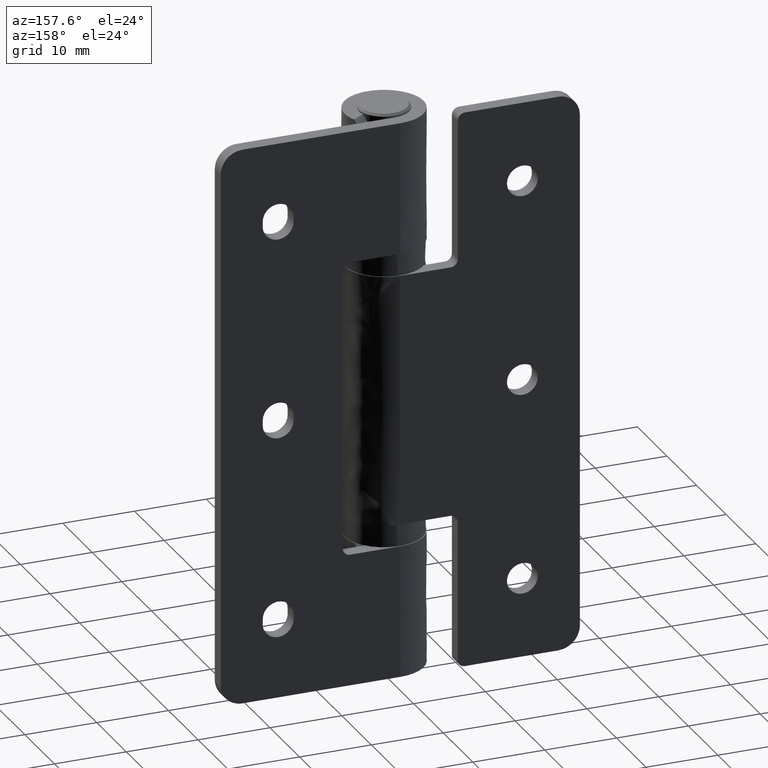
[diagram: clean part render]
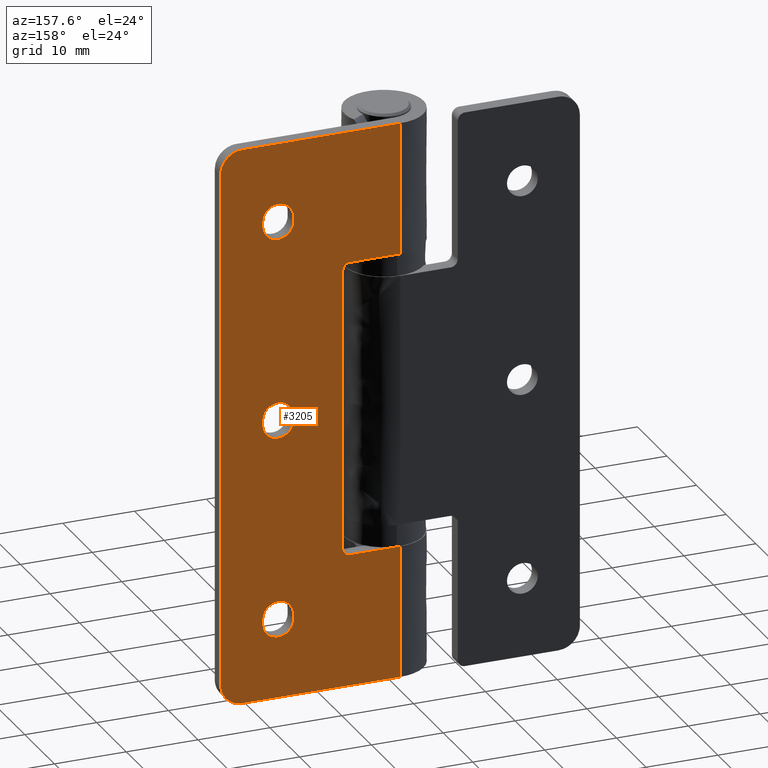
[diagram: same view with one face highlighted and labeled with its STEP entity id]
A machine part, auxiliary view. The second image highlights one B-rep face of the part: STEP entity #3205.
In plain terms, the highlighted face is a freeform B-spline surface patch.
Its self-contained STEP definition (entity closure, byte-faithful):
#2900=CARTESIAN_POINT('',(-1.248749951545153,5.500000000000229,-3.896099848820864));
#2901=CARTESIAN_POINT('',(-1.248749951545153,5.500000000000229,81.896101940943907));
#2902=CARTESIAN_POINT('',(26.248750622097401,5.500000000000229,-3.896099848820863));
#2903=CARTESIAN_POINT('',(26.248750622097401,5.500000000000229,81.896101940943893));
#2904=B_SPLINE_SURFACE_WITH_KNOTS('',1,1,((#2900,#2902),(#2901,#2903)),.UNSPECIFIED.,.F.,.F.,.U.,(2,2),(2,2),(0.0,85.792201789764775),(0.0,27.497500573642562),.UNSPECIFIED.);
#2905=CARTESIAN_POINT('',(25.0,5.500000000000229,75.0));
#2906=VERTEX_POINT('',#2905);
#2907=CARTESIAN_POINT('',(25.0,5.500000000000229,3.0));
#2908=VERTEX_POINT('',#2907);
#2909=CARTESIAN_POINT('',(25.0,5.500000000000229,75.0));
#2910=CARTESIAN_POINT('',(25.0,5.500000000000229,3.0));
#2911=QUASI_UNIFORM_CURVE('',1,(#2909,#2910),.UNSPECIFIED.,.F.,.U.);
#2912=EDGE_CURVE('',#2906,#2908,#2911,.T.);
#2913=ORIENTED_EDGE('',*,*,#2912,.T.);
#2914=CARTESIAN_POINT('',(22.0,5.500000000000229,0.0));
#2915=VERTEX_POINT('',#2914);
#2916=CARTESIAN_POINT('',(25.0,5.500000000000229,3.0));
#2917=CARTESIAN_POINT('',(25.0,5.500000000000229,0.0));
#2918=CARTESIAN_POINT('',(22.0,5.500000000000229,0.0));
#2926=(BOUNDED_CURVE()B_SPLINE_CURVE(2,(#2916,#2917,#2918),.UNSPECIFIED.,.F.,.U.)CURVE()GEOMETRIC_REPRESENTATION_ITEM()QUASI_UNIFORM_CURVE()RATIONAL_B_SPLINE_CURVE((1.0,0.707106781186548,1.0))REPRESENTATION_ITEM(''));
#2927=EDGE_CURVE('',#2908,#2915,#2926,.T.);
#2928=ORIENTED_EDGE('',*,*,#2927,.T.);
#2929=CARTESIAN_POINT('',(-1.010300E-015,5.500000000000000,0.0));
#2930=VERTEX_POINT('',#2929);
#2931=CARTESIAN_POINT('',(-1.010300E-015,5.500000000000000,0.0));
#2932=CARTESIAN_POINT('',(22.0,5.500000000000229,0.0));
#2933=QUASI_UNIFORM_CURVE('',1,(#2931,#2932),.UNSPECIFIED.,.F.,.U.);
#2934=EDGE_CURVE('',#2930,#2915,#2933,.T.);
#2935=ORIENTED_EDGE('',*,*,#2934,.F.);
#2936=CARTESIAN_POINT('',(-1.010298E-015,5.500000000000229,18.399999999999999));
#2937=VERTEX_POINT('',#2936);
#2938=CARTESIAN_POINT('',(-1.010298E-015,5.500000000000229,18.399999999999999));
#2939=CARTESIAN_POINT('',(-1.010300E-015,5.500000000000000,0.0));
#2940=QUASI_UNIFORM_CURVE('',1,(#2938,#2939),.UNSPECIFIED.,.F.,.U.);
#2941=EDGE_CURVE('',#2937,#2930,#2940,.T.);
#2942=ORIENTED_EDGE('',*,*,#2941,.F.);
#2943=CARTESIAN_POINT('',(7.0,5.500000000000229,18.399999999999999));
#2944=VERTEX_POINT('',#2943);
#2945=CARTESIAN_POINT('',(7.0,5.500000000000229,18.399999999999999));
#2946=CARTESIAN_POINT('',(-1.010298E-015,5.500000000000229,18.399999999999999));
#2947=QUASI_UNIFORM_CURVE('',1,(#2945,#2946),.UNSPECIFIED.,.F.,.U.);
#2948=EDGE_CURVE('',#2944,#2937,#2947,.T.);
#2949=ORIENTED_EDGE('',*,*,#2948,.F.);
#2950=CARTESIAN_POINT('',(8.0,5.500000000000229,19.399999999999999));
#2951=VERTEX_POINT('',#2950);
#2952=CARTESIAN_POINT('',(7.0,5.500000000000229,18.399999999999999));
#2953=CARTESIAN_POINT('',(8.0,5.500000000000279,18.399999999999991));
#2954=CARTESIAN_POINT('',(8.0,5.500000000000280,19.399999999999999));
#2962=(BOUNDED_CURVE()B_SPLINE_CURVE(2,(#2952,#2953,#2954),.UNSPECIFIED.,.F.,.U.)CURVE()GEOMETRIC_REPRESENTATION_ITEM()QUASI_UNIFORM_CURVE()RATIONAL_B_SPLINE_CURVE((1.0,0.707106781186548,1.0))REPRESENTATION_ITEM(''));
#2963=EDGE_CURVE('',#2944,#2951,#2962,.T.);
#2964=ORIENTED_EDGE('',*,*,#2963,.T.);
#2965=CARTESIAN_POINT('',(8.0,5.500000000000229,58.600000000000001));
#2966=VERTEX_POINT('',#2965);
#2967=CARTESIAN_POINT('',(8.0,5.500000000000229,58.600000000000001));
#2968=CARTESIAN_POINT('',(8.0,5.500000000000229,19.399999999999999));
#2969=QUASI_UNIFORM_CURVE('',1,(#2967,#2968),.UNSPECIFIED.,.F.,.U.);
#2970=EDGE_CURVE('',#2966,#2951,#2969,.T.);
#2971=ORIENTED_EDGE('',*,*,#2970,.F.);
#2972=CARTESIAN_POINT('',(7.0,5.500000000000229,59.600000000000001));
#2973=VERTEX_POINT('',#2972);
#2974=CARTESIAN_POINT('',(8.0,5.500000000000280,58.600000000000001));
#2975=CARTESIAN_POINT('',(8.0,5.500000000000279,59.600000000000009));
#2976=CARTESIAN_POINT('',(7.0,5.500000000000280,59.600000000000001));
#2984=(BOUNDED_CURVE()B_SPLINE_CURVE(2,(#2974,#2975,#2976),.UNSPECIFIED.,.F.,.U.)CURVE()GEOMETRIC_REPRESENTATION_ITEM()QUASI_UNIFORM_CURVE()RATIONAL_B_SPLINE_CURVE((1.0,0.707106781186548,1.0))REPRESENTATION_ITEM(''));
#2985=EDGE_CURVE('',#2966,#2973,#2984,.T.);
#2986=ORIENTED_EDGE('',*,*,#2985,.T.);
#2987=CARTESIAN_POINT('',(-1.010298E-015,5.500000000000229,59.600000000000001));
#2988=VERTEX_POINT('',#2987);
#2989=CARTESIAN_POINT('',(-1.010298E-015,5.500000000000229,59.600000000000001));
#2990=CARTESIAN_POINT('',(7.0,5.500000000000229,59.600000000000001));
#2991=QUASI_UNIFORM_CURVE('',1,(#2989,#2990),.UNSPECIFIED.,.F.,.U.);
#2992=EDGE_CURVE('',#2988,#2973,#2991,.T.);
#2993=ORIENTED_EDGE('',*,*,#2992,.F.);
#2994=CARTESIAN_POINT('',(-1.010300E-015,5.500000000000000,78.0));
#2995=VERTEX_POINT('',#2994);
#2996=CARTESIAN_POINT('',(-1.010300E-015,5.500000000000000,78.0));
#2997=CARTESIAN_POINT('',(-1.010298E-015,5.500000000000229,59.600000000000001));
#2998=QUASI_UNIFORM_CURVE('',1,(#2996,#2997),.UNSPECIFIED.,.F.,.U.);
#2999=EDGE_CURVE('',#2995,#2988,#2998,.T.);
#3000=ORIENTED_EDGE('',*,*,#2999,.F.);
#3001=CARTESIAN_POINT('',(22.0,5.500000000000229,78.0));
#3002=VERTEX_POINT('',#3001);
#3003=CARTESIAN_POINT('',(-1.010300E-015,5.500000000000000,78.0));
#3004=CARTESIAN_POINT('',(22.0,5.500000000000229,78.0));
#3005=QUASI_UNIFORM_CURVE('',1,(#3003,#3004),.UNSPECIFIED.,.F.,.U.);
#3006=EDGE_CURVE('',#2995,#3002,#3005,.T.);
#3007=ORIENTED_EDGE('',*,*,#3006,.T.);
#3008=CARTESIAN_POINT('',(22.0,5.500000000000229,78.0));
#3009=CARTESIAN_POINT('',(25.0,5.500000000000229,78.0));
#3010=CARTESIAN_POINT('',(25.0,5.500000000000229,75.0));
#3018=(BOUNDED_CURVE()B_SPLINE_CURVE(2,(#3008,#3009,#3010),.UNSPECIFIED.,.F.,.U.)CURVE()GEOMETRIC_REPRESENTATION_ITEM()QUASI_UNIFORM_CURVE()RATIONAL_B_SPLINE_CURVE((1.0,0.707106781186548,1.0))REPRESENTATION_ITEM(''));
#3019=EDGE_CURVE('',#3002,#2906,#3018,.T.);
#3020=ORIENTED_EDGE('',*,*,#3019,.T.);
#3021=EDGE_LOOP('',(#2913,#2928,#2935,#2942,#2949,#2964,#2971,#2986,#2993,#3000,#3007,#3020));
#3022=FACE_OUTER_BOUND('',#3021,.T.);
#3023=CARTESIAN_POINT('',(14.850000000000000,5.500000000000229,10.649999999999800));
#3024=VERTEX_POINT('',#3023);
#3025=CARTESIAN_POINT('',(14.850000000000000,5.500000000000229,11.350000000000000));
#3026=VERTEX_POINT('',#3025);
#3027=CARTESIAN_POINT('',(14.850000000000000,5.500000000000229,10.649999999999800));
#3028=CARTESIAN_POINT('',(14.850000000000000,5.500000000000229,11.350000000000000));
#3029=QUASI_UNIFORM_CURVE('',1,(#3027,#3028),.UNSPECIFIED.,.F.,.U.);
#3030=EDGE_CURVE('',#3024,#3026,#3029,.T.);
#3031=ORIENTED_EDGE('',*,*,#3030,.F.);
#3032=CARTESIAN_POINT('',(19.149999999999999,5.500000000000280,10.650000000000000));
#3033=VERTEX_POINT('',#3032);
#3034=CARTESIAN_POINT('',(14.850000000000000,5.500000000000229,10.649999999999800));
#3035=CARTESIAN_POINT('',(14.849811707021050,5.500000000000227,10.403725028772850));
#3036=CARTESIAN_POINT('',(14.914191395577030,5.500000000000239,10.034483374774659));
#3037=CARTESIAN_POINT('',(15.127426038453359,5.500000000000229,9.569002962986486));
#3038=CARTESIAN_POINT('',(15.341156563849850,5.500000000000227,9.265541621716659));
#3039=CARTESIAN_POINT('',(15.665394703304310,5.500000000000243,8.941213677739263));
#3040=CARTESIAN_POINT('',(16.055959635265150,5.500000000000221,8.693858909093573));
#3041=CARTESIAN_POINT('',(16.492380524991781,5.500000000000205,8.549819884056827));
#3042=CARTESIAN_POINT('',(16.876171544557639,5.500000000000328,8.492877485248206));
#3043=CARTESIAN_POINT('',(17.264864919682509,5.500000000000126,8.502408755673741));
#3044=CARTESIAN_POINT('',(17.695983735860139,5.500000000000287,8.599204194603502));
#3045=CARTESIAN_POINT('',(18.098244087626831,5.500000000000220,8.783444747730886));
#3046=CARTESIAN_POINT('',(18.424760973636911,5.500000000000152,9.025631672239543));
#3047=CARTESIAN_POINT('',(18.704498307392551,5.500000000000238,9.319436798909896));
#3048=CARTESIAN_POINT('',(18.907163266828739,5.500000000000230,9.630956918420292));
#3049=CARTESIAN_POINT('',(19.096150334082179,5.500000000000243,10.087224028137991));
#3050=CARTESIAN_POINT('',(19.150144622762738,5.500000000000208,10.421321858406010));
#3051=CARTESIAN_POINT('',(19.149999999999999,5.500000000000280,10.650000000000000));
#3052=B_SPLINE_CURVE_WITH_KNOTS('',3,(#3034,#3035,#3036,#3037,#3038,#3039,#3040,#3041,#3042,#3043,#3044,#3045,#3046,#3047,#3048,#3049,#3050,#3051),.UNSPECIFIED.,.F.,.U.,(4,1,1,1,1,1,1,1,1,1,1,1,1,1,1,4),(0.000000324974197,0.738751803157196,1.108153372359948,1.530337068195387,1.846965516897091,2.480235004555820,2.902410099051510,3.219030310475953,3.641103087260100,4.063271374382831,4.538232794482427,4.960403285083242,5.277036423523961,5.751982979560173,6.068610273768472,6.754593701440429),.UNSPECIFIED.);
#3053=EDGE_CURVE('',#3024,#3033,#3052,.T.);
#3054=ORIENTED_EDGE('',*,*,#3053,.T.);
#3055=CARTESIAN_POINT('',(19.149999999999999,5.500000000000229,11.350000000000000));
#3056=VERTEX_POINT('',#3055);
#3057=CARTESIAN_POINT('',(19.149999999999999,5.500000000000229,11.350000000000000));
#3058=CARTESIAN_POINT('',(19.149999999999999,5.500000000000280,10.650000000000000));
#3059=QUASI_UNIFORM_CURVE('',1,(#3057,#3058),.UNSPECIFIED.,.F.,.U.);
#3060=EDGE_CURVE('',#3056,#3033,#3059,.T.);
#3061=ORIENTED_EDGE('',*,*,#3060,.F.);
#3062=CARTESIAN_POINT('',(19.149999999999999,5.500000000000229,11.350000000000000));
#3063=CARTESIAN_POINT('',(19.150086781213371,5.500000000000239,11.561074014981459));
#3064=CARTESIAN_POINT('',(19.095161282671459,5.500000000000222,11.930398548120291));
#3065=CARTESIAN_POINT('',(18.892939738782498,5.500000000000232,12.402099182797910));
#3066=CARTESIAN_POINT('',(18.618154833574032,5.500000000000204,12.792290155976630));
#3067=CARTESIAN_POINT('',(18.276735731963591,5.500000000000267,13.101753760939610));
#3068=CARTESIAN_POINT('',(17.907610598072910,5.500000000000196,13.310802921662919));
#3069=CARTESIAN_POINT('',(17.542258494041750,5.500000000000245,13.441521675783161));
#3070=CARTESIAN_POINT('',(17.159170669140440,5.500000000000284,13.508000717157350));
#3071=CARTESIAN_POINT('',(16.735133789296249,5.500000000000190,13.497592798431731));
#3072=CARTESIAN_POINT('',(16.338516502746021,5.500000000000217,13.408523263586259));
#3073=CARTESIAN_POINT('',(15.965288241637721,5.500000000000235,13.248540440679010));
#3074=CARTESIAN_POINT('',(15.583140091459409,5.500000000000234,12.993260520587540));
#3075=CARTESIAN_POINT('',(15.256954819838899,5.500000000000209,12.642125309761809));
#3076=CARTESIAN_POINT('',(15.013046424599640,5.500000000000277,12.211479710274130));
#3077=CARTESIAN_POINT('',(14.879439790905179,5.500000000000135,11.789718395508279));
#3078=CARTESIAN_POINT('',(14.849985900462190,5.500000000000378,11.490701948602890));
#3079=CARTESIAN_POINT('',(14.850000000000000,5.500000000000229,11.350000000000000));
#3080=B_SPLINE_CURVE_WITH_KNOTS('',3,(#3062,#3063,#3064,#3065,#3066,#3067,#3068,#3069,#3070,#3071,#3072,#3073,#3074,#3075,#3076,#3077,#3078,#3079),.UNSPECIFIED.,.F.,.U.,(4,1,1,1,1,1,1,1,1,1,1,1,1,1,1,4),(0.000000324979477,0.633211884215018,1.108153372364019,1.530337068198957,2.058057390868867,2.480235004558111,2.796865135107265,3.219030310477548,3.641103087261439,4.063271374383863,4.432684728722233,4.854862624357067,5.435354085936118,5.857524683232521,6.332475433552829,6.754593701440228),.UNSPECIFIED.);
#3081=EDGE_CURVE('',#3056,#3026,#3080,.T.);
#3082=ORIENTED_EDGE('',*,*,#3081,.T.);
#3083=EDGE_LOOP('',(#3031,#3054,#3061,#3082));
#3084=FACE_BOUND('',#3083,.T.);
#3085=CARTESIAN_POINT('',(19.149999999999999,5.500000000000229,39.350000000000001));
#3086=VERTEX_POINT('',#3085);
#3087=CARTESIAN_POINT('',(14.850000000000000,5.500000000000280,39.350000000000001));
#3088=VERTEX_POINT('',#3087);
#3089=CARTESIAN_POINT('',(19.149999999999999,5.500000000000229,39.350000000000001));
#3090=CARTESIAN_POINT('',(19.150029018592932,5.500000000000225,39.508299141621883));
#3091=CARTESIAN_POINT('',(19.114865935505090,5.500000000000232,39.824886486822074));
#3092=CARTESIAN_POINT('',(18.936517184122511,5.500000000000221,40.343718050441957));
#3093=CARTESIAN_POINT('',(18.593866652413048,5.500000000000267,40.843201039058350));
#3094=CARTESIAN_POINT('',(18.131224416831270,5.500000000000185,41.204177150304680));
#3095=CARTESIAN_POINT('',(17.711031922418670,5.500000000000269,41.390315682419292));
#3096=CARTESIAN_POINT('',(17.334657930443619,5.500000000000270,41.484594950727598));
#3097=CARTESIAN_POINT('',(16.946902415177352,5.500000000000117,41.513209223697210));
#3098=CARTESIAN_POINT('',(16.473281339330949,5.500000000000303,41.454836853981277));
#3099=CARTESIAN_POINT('',(16.024053892914690,5.500000000000206,41.287870446514312));
#3100=CARTESIAN_POINT('',(15.627261892767640,5.500000000000223,41.022685331709397));
#3101=CARTESIAN_POINT('',(15.339818750275811,5.500000000000274,40.735223528532352));
#3102=CARTESIAN_POINT('',(15.070058628453319,5.500000000000045,40.342175821300302));
#3103=CARTESIAN_POINT('',(14.890908268527919,5.500000000000670,39.877686324312222));
#3104=CARTESIAN_POINT('',(14.849988875540490,5.499999999999819,39.508289208706479));
#3105=CARTESIAN_POINT('',(14.850000000000000,5.500000000000280,39.350000000000001));
#3106=B_SPLINE_CURVE_WITH_KNOTS('',3,(#3089,#3090,#3091,#3092,#3093,#3094,#3095,#3096,#3097,#3098,#3099,#3100,#3101,#3102,#3103,#3104,#3105),.UNSPECIFIED.,.F.,.U.,(4,1,1,1,1,1,1,1,1,1,1,1,1,1,4),(0.000000324958116,0.474905243431270,0.949835305316644,1.635880206026481,2.269148133551552,2.691321007262653,3.007954784656129,3.430050758035192,3.852184052346533,4.432684728715720,4.854862624351824,5.277036423520570,5.646440968789280,6.279701977597624,6.754593701440331),.UNSPECIFIED.);
#3107=EDGE_CURVE('',#3086,#3088,#3106,.T.);
#3108=ORIENTED_EDGE('',*,*,#3107,.T.);
#3109=CARTESIAN_POINT('',(14.850000000000000,5.500000000000229,38.649999999999999));
#3110=VERTEX_POINT('',#3109);
#3111=CARTESIAN_POINT('',(14.850000000000000,5.500000000000280,39.350000000000001));
#3112=CARTESIAN_POINT('',(14.850000000000000,5.500000000000229,38.649999999999999));
#3113=QUASI_UNIFORM_CURVE('',1,(#3111,#3112),.UNSPECIFIED.,.F.,.U.);
#3114=EDGE_CURVE('',#3088,#3110,#3113,.T.);
#3115=ORIENTED_EDGE('',*,*,#3114,.T.);
#3116=CARTESIAN_POINT('',(19.149999999999999,5.500000000000229,38.649999999999999));
#3117=VERTEX_POINT('',#3116);
#3118=CARTESIAN_POINT('',(14.850000000000000,5.500000000000229,38.649999999999999));
#3119=CARTESIAN_POINT('',(14.849912819495501,5.500000000000227,38.438926062837389));
#3120=CARTESIAN_POINT('',(14.904839489730760,5.500000000000231,38.069602514359580));
#3121=CARTESIAN_POINT('',(15.107060427412600,5.500000000000228,37.597900433421692));
#3122=CARTESIAN_POINT('',(15.381844005073679,5.500000000000238,37.207709256720392));
#3123=CARTESIAN_POINT('',(15.723267164118070,5.500000000000207,36.898251670562303));
#3124=CARTESIAN_POINT('',(16.123142562114801,5.500000000000276,36.671760075643697));
#3125=CARTESIAN_POINT('',(16.492372476422752,5.500000000000211,36.549805720464128));
#3126=CARTESIAN_POINT('',(16.876171080631121,5.500000000000258,36.492877215162977));
#3127=CARTESIAN_POINT('',(17.264856597606940,5.500000000000232,36.502422332094000));
#3128=CARTESIAN_POINT('',(17.765022608527349,5.500000000000240,36.614609117488840));
#3129=CARTESIAN_POINT('',(18.223529681828509,5.500000000000225,36.852548266675853));
#3130=CARTESIAN_POINT('',(18.668897742889179,5.500000000000237,37.256142849225810));
#3131=CARTESIAN_POINT('',(18.931166850218911,5.500000000000219,37.659300111288488));
#3132=CARTESIAN_POINT('',(19.109333643810132,5.500000000000242,38.157549037881893));
#3133=CARTESIAN_POINT('',(19.150072563682180,5.500000000000212,38.456516721749409));
#3134=CARTESIAN_POINT('',(19.149999999999999,5.500000000000229,38.649999999999999));
#3135=B_SPLINE_CURVE_WITH_KNOTS('',3,(#3118,#3119,#3120,#3121,#3122,#3123,#3124,#3125,#3126,#3127,#3128,#3129,#3130,#3131,#3132,#3133,#3134),.UNSPECIFIED.,.F.,.U.,(4,1,1,1,1,1,1,1,1,1,1,1,1,1,4),(0.000000325001137,0.633211884234277,1.108153372381663,1.530337068215219,2.058057390883238,2.480235004570940,2.902410099064573,3.219030310487552,3.641103087269920,4.063271374390975,4.749324177887643,5.171491025500680,5.857524683234345,6.174155394580790,6.754593701440222),.UNSPECIFIED.);
#3136=EDGE_CURVE('',#3110,#3117,#3135,.T.);
#3137=ORIENTED_EDGE('',*,*,#3136,.T.);
#3138=CARTESIAN_POINT('',(19.149999999999999,5.500000000000229,38.649999999999999));
#3139=CARTESIAN_POINT('',(19.149999999999999,5.500000000000229,39.350000000000001));
#3140=QUASI_UNIFORM_CURVE('',1,(#3138,#3139),.UNSPECIFIED.,.F.,.U.);
#3141=EDGE_CURVE('',#3117,#3086,#3140,.T.);
#3142=ORIENTED_EDGE('',*,*,#3141,.T.);
#3143=EDGE_LOOP('',(#3108,#3115,#3137,#3142));
#3144=FACE_BOUND('',#3143,.T.);
#3145=CARTESIAN_POINT('',(19.149999999999999,5.500000000000229,66.650000000000006));
#3146=VERTEX_POINT('',#3145);
#3147=CARTESIAN_POINT('',(19.149999999999999,5.500000000000229,67.349999999999994));
#3148=VERTEX_POINT('',#3147);
#3149=CARTESIAN_POINT('',(19.149999999999999,5.500000000000229,66.650000000000006));
#3150=CARTESIAN_POINT('',(19.149999999999999,5.500000000000229,67.349999999999994));
#3151=QUASI_UNIFORM_CURVE('',1,(#3149,#3150),.UNSPECIFIED.,.F.,.U.);
#3152=EDGE_CURVE('',#3146,#3148,#3151,.T.);
#3153=ORIENTED_EDGE('',*,*,#3152,.T.);
#3154=CARTESIAN_POINT('',(14.850000000000000,5.500000000000229,67.349999999999994));
#3155=VERTEX_POINT('',#3154);
#3156=CARTESIAN_POINT('',(19.149999999999999,5.500000000000229,67.349999999999994));
#3157=CARTESIAN_POINT('',(19.150035373147251,5.500000000000228,67.525887254184155));
#3158=CARTESIAN_POINT('',(19.104445942379140,5.500000000000238,67.895257418934889));
#3159=CARTESIAN_POINT('',(18.913341927091491,5.500000000000220,68.373220843382384));
#3160=CARTESIAN_POINT('',(18.658835694363539,5.500000000000231,68.734455066750087));
#3161=CARTESIAN_POINT('',(18.334605442037169,5.500000000000227,69.058785348991506));
#3162=CARTESIAN_POINT('',(17.944040007815531,5.500000000000214,69.306143308281605));
#3163=CARTESIAN_POINT('',(17.507620457269830,5.500000000000255,69.450173754594374));
#3164=CARTESIAN_POINT('',(17.054041725531469,5.500000000000225,69.517522071522166));
#3165=CARTESIAN_POINT('',(16.504336146460851,5.500000000000236,69.477066465206974));
#3166=CARTESIAN_POINT('',(15.958493366034190,5.500000000000230,69.258756293727913));
#3167=CARTESIAN_POINT('',(15.575249473163240,5.500000000000227,68.974349855314372));
#3168=CARTESIAN_POINT('',(15.295500705814639,5.500000000000262,68.680564171575043));
#3169=CARTESIAN_POINT('',(15.092837173001790,5.500000000000191,68.369042712592844));
#3170=CARTESIAN_POINT('',(14.903849507271749,5.500000000000230,67.912776005231763));
#3171=CARTESIAN_POINT('',(14.849854946445280,5.499999999999828,67.578678500424175));
#3172=CARTESIAN_POINT('',(14.850000000000000,5.500000000000229,67.349999999999994));
#3173=B_SPLINE_CURVE_WITH_KNOTS('',3,(#3156,#3157,#3158,#3159,#3160,#3161,#3162,#3163,#3164,#3165,#3166,#3167,#3168,#3169,#3170,#3171,#3172),.UNSPECIFIED.,.F.,.U.,(4,1,1,1,1,1,1,1,1,1,1,1,1,1,4),(0.000000325008163,0.527674844889666,1.108153372384463,1.530337068217015,1.846965516916933,2.480235004572289,2.902410099066012,3.219030310488975,3.852184052363738,4.538232794489397,4.960403285088585,5.277036423528100,5.751982979562790,6.068610273769973,6.754593701440106),.UNSPECIFIED.);
#3174=EDGE_CURVE('',#3148,#3155,#3173,.T.);
#3175=ORIENTED_EDGE('',*,*,#3174,.T.);
#3176=CARTESIAN_POINT('',(14.850000000000000,5.500000000000229,66.650000000000006));
#3177=VERTEX_POINT('',#3176);
#3178=CARTESIAN_POINT('',(14.850000000000000,5.500000000000229,67.349999999999994));
#3179=CARTESIAN_POINT('',(14.850000000000000,5.500000000000229,66.650000000000006));
#3180=QUASI_UNIFORM_CURVE('',1,(#3178,#3179),.UNSPECIFIED.,.F.,.U.);
#3181=EDGE_CURVE('',#3155,#3177,#3180,.T.);
#3182=ORIENTED_EDGE('',*,*,#3181,.T.);
#3183=CARTESIAN_POINT('',(14.850000000000000,5.500000000000229,66.650000000000006));
#3184=CARTESIAN_POINT('',(14.849725053201469,5.500000000000240,66.368526714957767));
#3185=CARTESIAN_POINT('',(14.937590314151540,5.500000000000203,65.929027663941540));
#3186=CARTESIAN_POINT('',(15.202256624932129,5.500000000000255,65.448437262546022));
#3187=CARTESIAN_POINT('',(15.459606638244040,5.500000000000203,65.134844403482475));
#3188=CARTESIAN_POINT('',(15.754039034095610,5.500000000000232,64.880843357344659));
#3189=CARTESIAN_POINT('',(16.092387590762719,5.500000000000229,64.689193968472978));
#3190=CARTESIAN_POINT('',(16.457739975545781,5.500000000000218,64.558485000453501));
#3191=CARTESIAN_POINT('',(16.910487719556581,5.500000000000239,64.479864257136512));
#3192=CARTESIAN_POINT('',(17.495665412982159,5.500000000000212,64.522929587766910));
#3193=CARTESIAN_POINT('',(18.074594135251662,5.500000000000270,64.754479392266390));
#3194=CARTESIAN_POINT('',(18.493690158912091,5.500000000000138,65.081687960127056));
#3195=CARTESIAN_POINT('',(18.777857583823000,5.500000000000314,65.419424725102346));
#3196=CARTESIAN_POINT('',(18.960804122304229,5.500000000000199,65.742383603382081));
#3197=CARTESIAN_POINT('',(19.109344819132229,5.500000000000174,66.157540896984031));
#3198=CARTESIAN_POINT('',(19.150071880709081,5.500000000000345,66.456517983475493));
#3199=CARTESIAN_POINT('',(19.149999999999999,5.500000000000229,66.650000000000006));
#3200=B_SPLINE_CURVE_WITH_KNOTS('',3,(#3183,#3184,#3185,#3186,#3187,#3188,#3189,#3190,#3191,#3192,#3193,#3194,#3195,#3196,#3197,#3198,#3199),.UNSPECIFIED.,.F.,.U.,(4,1,1,1,1,1,1,1,1,1,1,1,1,1,4),(0.000000324997191,0.844292803163935,1.319245394368035,1.635880206056995,2.058057390882469,2.480235004570242,2.796865135118136,3.219030310486685,3.852184052361760,4.538232794487858,5.065946347838521,5.435354085938403,5.857524683233862,6.174155394580455,6.754593701440226),.UNSPECIFIED.);
#3201=EDGE_CURVE('',#3177,#3146,#3200,.T.);
#3202=ORIENTED_EDGE('',*,*,#3201,.T.);
#3203=EDGE_LOOP('',(#3153,#3175,#3182,#3202));
#3204=FACE_BOUND('',#3203,.T.);
#3205=ADVANCED_FACE('',(#3022,#3084,#3144,#3204),#2904,.T.);